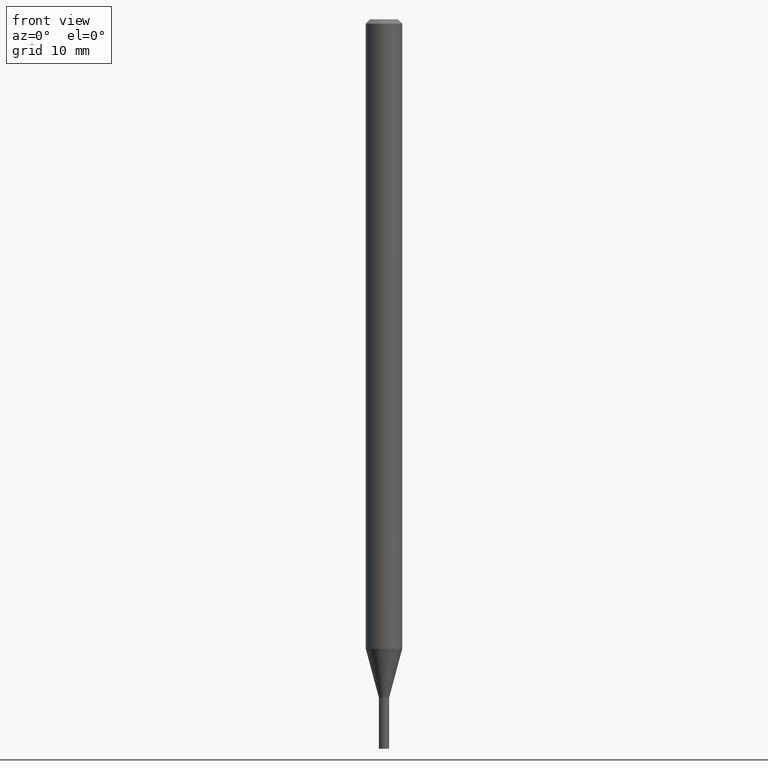
[diagram: clean part render]
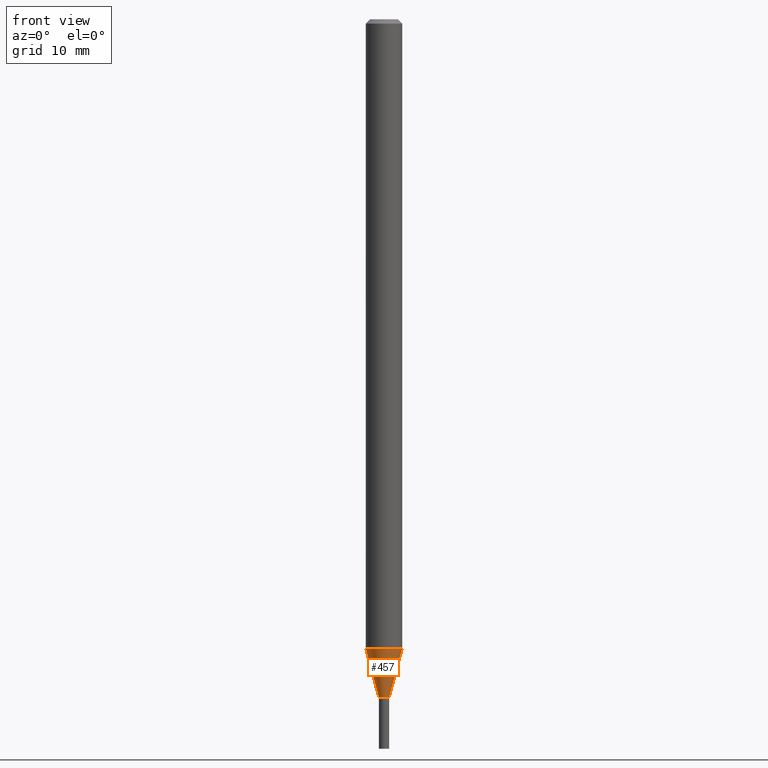
[diagram: same view with one face highlighted and labeled with its STEP entity id]
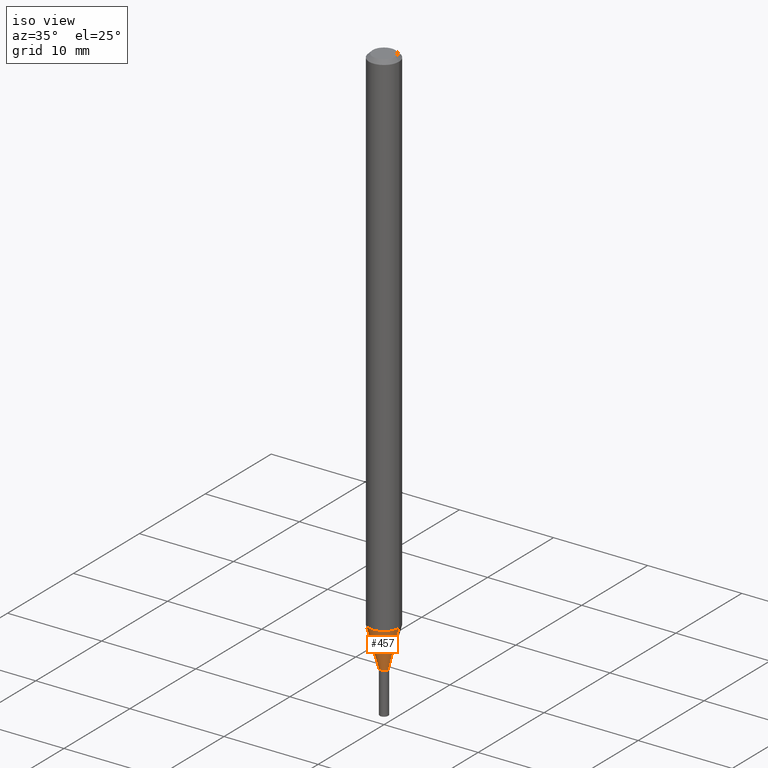
[diagram: same view with one face highlighted and labeled with its STEP entity id]
A machine part, front view. The second image highlights one B-rep face of the part: STEP entity #457.
A second angle (iso view) of the same face is appended — the face is thin or edge-on in the first view.
In plain terms, the highlighted conical surface has half-angle 15 deg.
Its self-contained STEP definition (entity closure, byte-faithful):
#5 = DIRECTION ( 'NONE',  ( 1.000000000000000000, -6.982962677686262766E-15, 0.000000000000000000 ) ) ;
#38 = VERTEX_POINT ( 'NONE', #311 ) ;
#41 = CARTESIAN_POINT ( 'NONE',  ( 5.275017351895093327E-29, -7.531326754049456374E-15, -2.157057713659400022 ) ) ;
#42 = AXIS2_PLACEMENT_3D ( 'NONE', #41, #111, #5 ) ;
#80 = DIRECTION ( 'NONE',  ( 0.2588190451025211281, 1.565188264969622954E-15, 0.9659258262890679791 ) ) ;
#89 = DIRECTION ( 'NONE',  ( -2.445468806185136597E-29, 3.491481338843145583E-15, 1.000000000000000000 ) ) ;
#108 = CARTESIAN_POINT ( 'NONE',  ( 5.685714974380443933E-29, -8.117694112810315028E-15, -2.325000000000000622 ) ) ;
#111 = DIRECTION ( 'NONE',  ( -2.445468806185136597E-29, 3.491481338843145583E-15, 1.000000000000000000 ) ) ;
#132 = CARTESIAN_POINT ( 'NONE',  ( 5.685714974380443933E-29, -8.117694112810315028E-15, -2.325000000000000622 ) ) ;
#134 = VERTEX_POINT ( 'NONE', #181 ) ;
#138 = VERTEX_POINT ( 'NONE', #205 ) ;
#148 = CARTESIAN_POINT ( 'NONE',  ( 0.01749999999999964778, -8.239895959669821855E-15, -2.325000000000000622 ) ) ;
#173 = EDGE_LOOP ( 'NONE', ( #175, #240, #341, #323 ) ) ;
#175 = ORIENTED_EDGE ( 'NONE', *, *, #340, .F. ) ;
#176 = VECTOR ( 'NONE', #80, 39.37007874015748854 ) ;
#181 = CARTESIAN_POINT ( 'NONE',  ( 0.01749999999999964778, -8.239895959669821855E-15, -2.325000000000000622 ) ) ;
#192 = CIRCLE ( 'NONE', #42, 0.06250000000000000000 ) ;
#205 = CARTESIAN_POINT ( 'NONE',  ( 0.06250000000000001388, -7.967761921404848044E-15, -2.157057713659400022 ) ) ;
#236 = VECTOR ( 'NONE', #364, 39.37007874015748854 ) ;
#240 = ORIENTED_EDGE ( 'NONE', *, *, #439, .T. ) ;
#250 = CIRCLE ( 'NONE', #306, 0.01749999999999964778 ) ;
#265 = CONICAL_SURFACE ( 'NONE', #362, 0.01749999999999964778, 0.2617993877991498519 ) ;
#292 = LINE ( 'NONE', #148, #176 ) ;
#293 = DIRECTION ( 'NONE',  ( -2.445468806185136597E-29, 3.491481338843145583E-15, 1.000000000000000000 ) ) ;
#297 = LINE ( 'NONE', #403, #236 ) ;
#306 = AXIS2_PLACEMENT_3D ( 'NONE', #108, #293, #368 ) ;
#311 = CARTESIAN_POINT ( 'NONE',  ( -0.01749999999999964778, -7.540293339125846952E-15, -2.325000000000000622 ) ) ;
#323 = ORIENTED_EDGE ( 'NONE', *, *, #379, .F. ) ;
#340 = EDGE_CURVE ( 'NONE', #38, #396, #297, .T. ) ;
#341 = ORIENTED_EDGE ( 'NONE', *, *, #367, .T. ) ;
#362 = AXIS2_PLACEMENT_3D ( 'NONE', #132, #89, #383 ) ;
#364 = DIRECTION ( 'NONE',  ( -0.2588190451025211281, 5.211531920934547886E-15, 0.9659258262890679791 ) ) ;
#367 = EDGE_CURVE ( 'NONE', #134, #138, #292, .T. ) ;
#368 = DIRECTION ( 'NONE',  ( 1.000000000000000000, -6.982962677686278543E-15, 0.000000000000000000 ) ) ;
#379 = EDGE_CURVE ( 'NONE', #396, #138, #192, .T. ) ;
#383 = DIRECTION ( 'NONE',  ( 1.000000000000000000, -6.982962677686278543E-15, 0.000000000000000000 ) ) ;
#396 = VERTEX_POINT ( 'NONE', #397 ) ;
#397 = CARTESIAN_POINT ( 'NONE',  ( -0.06250000000000001388, -7.087237544199393758E-15, -2.157057713659400022 ) ) ;
#403 = CARTESIAN_POINT ( 'NONE',  ( -0.01749999999999964778, -7.993349134052300146E-15, -2.325000000000000622 ) ) ;
#421 = FACE_OUTER_BOUND ( 'NONE', #173, .T. ) ;
#439 = EDGE_CURVE ( 'NONE', #38, #134, #250, .T. ) ;
#457 = ADVANCED_FACE ( 'NONE', ( #421 ), #265, .T. ) ;